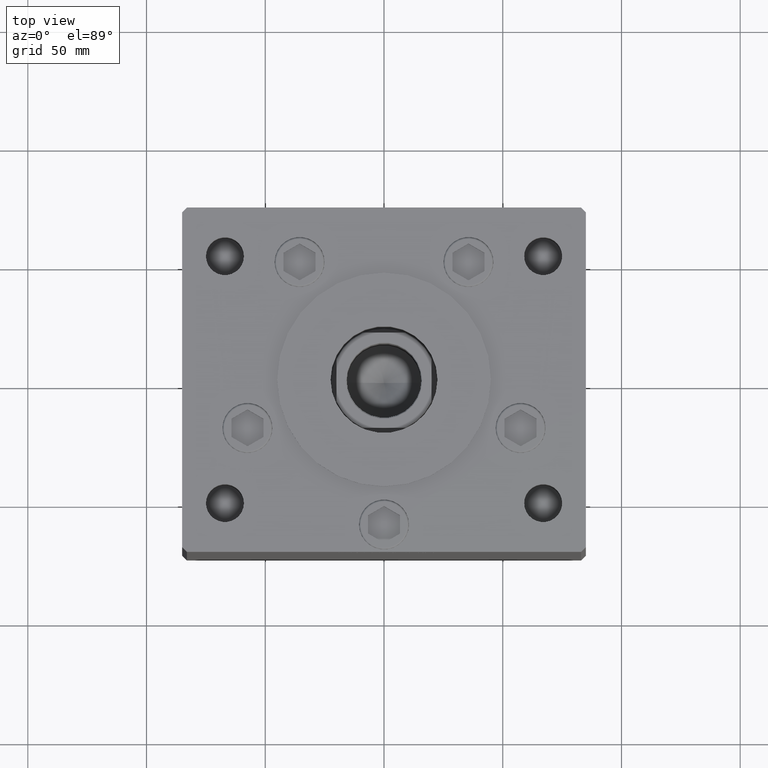
[diagram: clean part render]
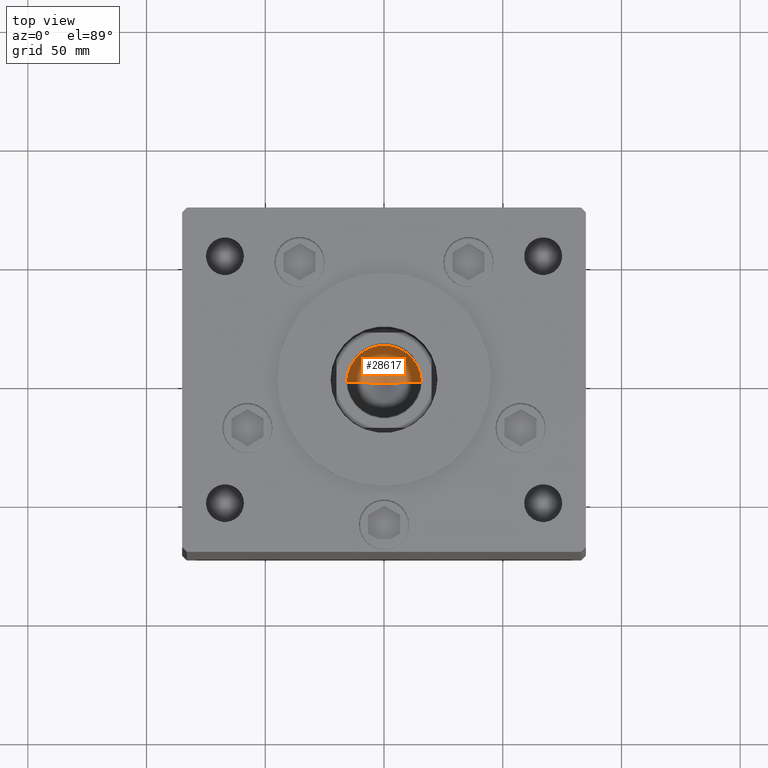
[diagram: same view with one face highlighted and labeled with its STEP entity id]
A machine part, top view. The second image highlights one B-rep face of the part: STEP entity #28617.
In plain terms, the highlighted conical surface has half-angle 59 deg.
Its self-contained STEP definition (entity closure, byte-faithful):
#127 = CARTESIAN_POINT ( 'NONE',  ( -15.74999999999998934, 1.928818708657080161E-15, 104.0000000000000426 ) ) ;
#757 = VERTEX_POINT ( 'NONE', #42922 ) ;
#2376 = VECTOR ( 'NONE', #22267, 1000.000000000000000 ) ;
#2615 = DIRECTION ( 'NONE',  ( 1.000000000000000000, 0.000000000000000000, 0.000000000000000000 ) ) ;
#3237 = AXIS2_PLACEMENT_3D ( 'NONE', #19687, #35768, #31812 ) ;
#4647 = VECTOR ( 'NONE', #51211, 1000.000000000000000 ) ;
#6452 = LINE ( 'NONE', #34116, #2376 ) ;
#8589 = CIRCLE ( 'NONE', #14490, 15.74999999999998934 ) ;
#8942 = EDGE_CURVE ( 'NONE', #43248, #757, #6452, .T. ) ;
#12251 = ORIENTED_EDGE ( 'NONE', *, *, #43479, .T. ) ;
#14490 = AXIS2_PLACEMENT_3D ( 'NONE', #37953, #38721, #2615 ) ;
#14832 = VERTEX_POINT ( 'NONE', #127 ) ;
#18853 = EDGE_CURVE ( 'NONE', #43248, #14832, #49941, .T. ) ;
#19687 = CARTESIAN_POINT ( 'NONE',  ( 0.000000000000000000, 0.000000000000000000, 104.0000000000000426 ) ) ;
#22267 = DIRECTION ( 'NONE',  ( 0.8571673007021118895, 0.000000000000000000, 0.5150380749100549327 ) ) ;
#28617 = ADVANCED_FACE ( 'NONE', ( #39718 ), #50408, .F. ) ;
#29893 = CARTESIAN_POINT ( 'NONE',  ( -15.74999999999998934, 1.928818708657080161E-15, 104.0000000000000426 ) ) ;
#30595 = ORIENTED_EDGE ( 'NONE', *, *, #18853, .F. ) ;
#31812 = DIRECTION ( 'NONE',  ( 1.000000000000000000, 0.000000000000000000, 0.000000000000000000 ) ) ;
#34116 = CARTESIAN_POINT ( 'NONE',  ( 15.74999999999998934, 0.000000000000000000, 104.0000000000000426 ) ) ;
#35768 = DIRECTION ( 'NONE',  ( -0.000000000000000000, -0.000000000000000000, 1.000000000000000000 ) ) ;
#36131 = CARTESIAN_POINT ( 'NONE',  ( -1.480675244360640996E-14, 0.000000000000000000, 94.53644525031596402 ) ) ;
#37953 = CARTESIAN_POINT ( 'NONE',  ( 0.000000000000000000, 0.000000000000000000, 104.0000000000000426 ) ) ;
#38721 = DIRECTION ( 'NONE',  ( -0.000000000000000000, -0.000000000000000000, 1.000000000000000000 ) ) ;
#39718 = FACE_OUTER_BOUND ( 'NONE', #50664, .T. ) ;
#42922 = CARTESIAN_POINT ( 'NONE',  ( 15.74999999999998934, 0.000000000000000000, 104.0000000000000426 ) ) ;
#43248 = VERTEX_POINT ( 'NONE', #36131 ) ;
#43479 = EDGE_CURVE ( 'NONE', #757, #14832, #8589, .T. ) ;
#46440 = ORIENTED_EDGE ( 'NONE', *, *, #8942, .T. ) ;
#49941 = LINE ( 'NONE', #29893, #4647 ) ;
#50408 = CONICAL_SURFACE ( 'NONE', #3237, 15.74999999999998934, 1.029744258676653645 ) ;
#50664 = EDGE_LOOP ( 'NONE', ( #30595, #46440, #12251 ) ) ;
#51211 = DIRECTION ( 'NONE',  ( -0.8571673007021118895, 1.049727191138618079E-16, 0.5150380749100549327 ) ) ;